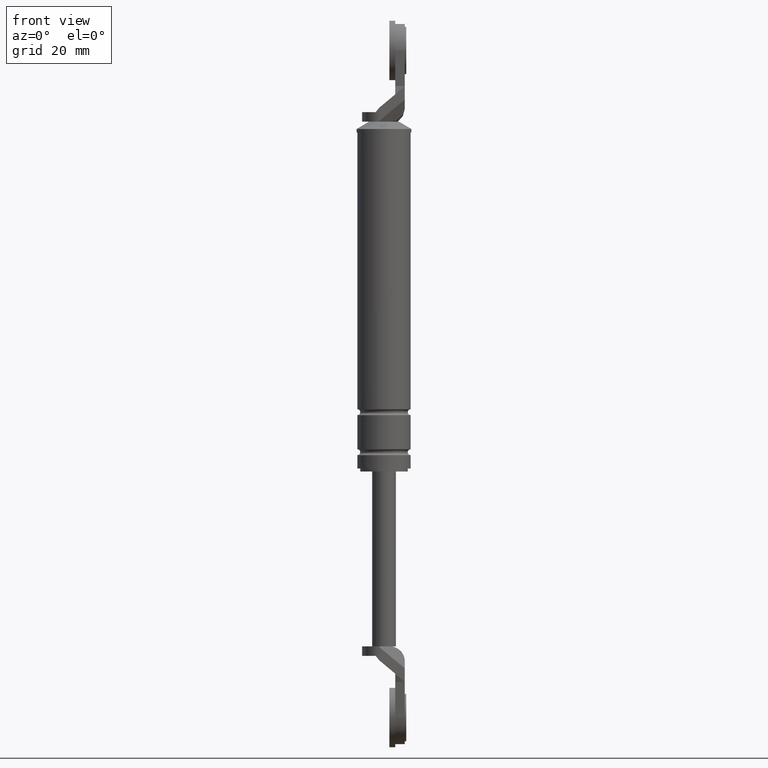
[diagram: clean part render]
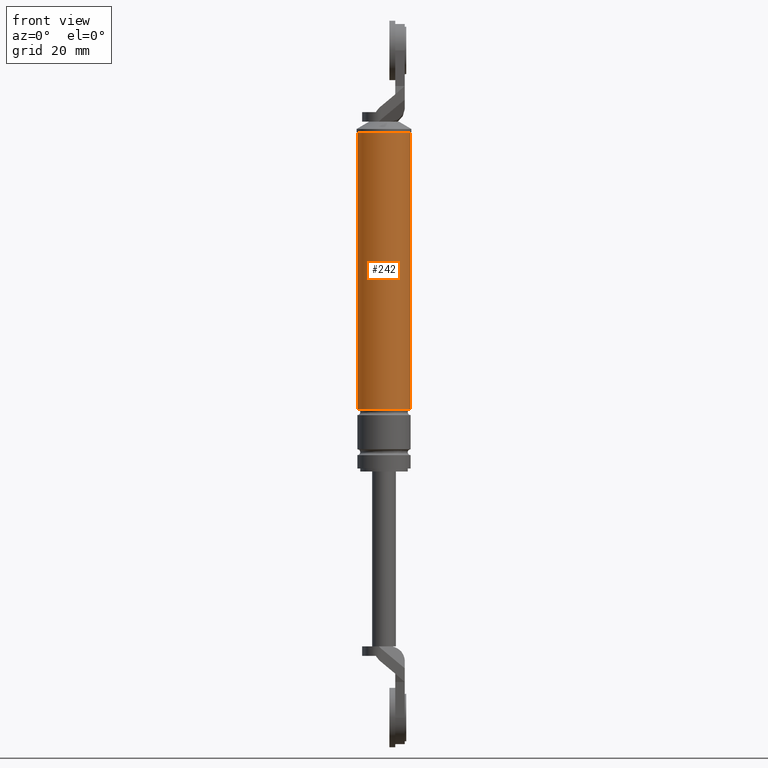
[diagram: same view with one face highlighted and labeled with its STEP entity id]
A machine part, front view. The second image highlights one B-rep face of the part: STEP entity #242.
In plain terms, the highlighted cylindrical surface (edge-blend (fillet) strip) has radius 9 mm, axis along (0, 0, 1).
Its self-contained STEP definition (entity closure, byte-faithful):
#242=ADVANCED_FACE('',(#675),#674,.T.);
#674=CYLINDRICAL_SURFACE('',#1397,9.00000000000E+000);
#675=FACE_OUTER_BOUND('',#1398,.T.);
#1394=CARTESIAN_POINT('',(0.00000000000E+000,3.58204186421E-014,0.00000000000E+000));
#1395=DIRECTION('',(-0.00000000000E+000,-0.00000000000E+000,1.00000000000E+000));
#1396=DIRECTION('',(1.00000000000E+000,0.00000000000E+000,0.00000000000E+000));
#1397=AXIS2_PLACEMENT_3D('',#1394,#1395,#1396);
#1398=EDGE_LOOP('',(#1946,#1947,#1948,#1949));
#1946=ORIENTED_EDGE('',*,*,#2260,.F.);
#1947=ORIENTED_EDGE('',*,*,#2257,.T.);
#1948=ORIENTED_EDGE('',*,*,#2234,.T.);
#1949=ORIENTED_EDGE('',*,*,#2259,.F.);
#2234=EDGE_CURVE('',#2868,#2869,#2870,.T.);
#2257=EDGE_CURVE('',#3020,#2868,#3021,.T.);
#2259=EDGE_CURVE('',#3027,#2869,#3034,.T.);
#2260=EDGE_CURVE('',#3020,#3027,#3040,.T.);
#2868=VERTEX_POINT('',#3993);
#2869=VERTEX_POINT('',#3994);
#2870=CIRCLE('',#3998,9.00000000000E+000);
#3020=VERTEX_POINT('',#4089);
#3021=(BOUNDED_CURVE() B_SPLINE_CURVE(1,(#4090,#4091),.UNSPECIFIED.,.F.,.F.) B_SPLINE_CURVE_WITH_KNOTS((2,2),(8.33333332085E-002,9.16666666563E-001),.UNSPECIFIED.) CURVE() GEOMETRIC_REPRESENTATION_ITEM() RATIONAL_B_SPLINE_CURVE((1.00000000000E+000,1.00000000000E+000)) REPRESENTATION_ITEM('') );
#3027=VERTEX_POINT('',#4092);
#3034=(BOUNDED_CURVE() B_SPLINE_CURVE(1,(#4097,#4098),.UNSPECIFIED.,.F.,.F.) B_SPLINE_CURVE_WITH_KNOTS((2,2),(8.33333333333E-002,9.16666666667E-001),.UNSPECIFIED.) CURVE() GEOMETRIC_REPRESENTATION_ITEM() RATIONAL_B_SPLINE_CURVE((7.50000000000E-001,7.50000000000E-001)) REPRESENTATION_ITEM('') );
#3040=CIRCLE('',#4102,9.00000000000E+000);
#3993=CARTESIAN_POINT('',(9.00000000000E+000,3.61192557345E-014,8.52999850000E+001));
#3994=CARTESIAN_POINT('',(-9.00000000000E+000,3.58204186421E-014,8.52999850000E+001));
#3995=CARTESIAN_POINT('',(0.00000000000E+000,3.58204186421E-014,8.52999850000E+001));
#3996=DIRECTION('',(-0.00000000000E+000,0.00000000000E+000,-1.00000000000E+000));
#3997=DIRECTION('',(-1.00000000000E+000,-1.22460635382E-016,0.00000000000E+000));
#3998=AXIS2_PLACEMENT_3D('',#3995,#3996,#3997);
#4089=CARTESIAN_POINT('',(9.00000000000E+000,3.61192557345E-014,-8.00001500000E+000));
#4090=CARTESIAN_POINT('',(9.00000000000E+000,3.58204186421E-014,-8.00001501398E+000));
#4091=CARTESIAN_POINT('',(9.00000000000E+000,3.58204186421E-014,8.52999849884E+001));
#4092=CARTESIAN_POINT('',(-9.00000000000E+000,3.58204186421E-014,-8.00001500000E+000));
#4097=CARTESIAN_POINT('',(-9.00000000000E+000,3.52310773148E-014,-8.00001500000E+000));
#4098=CARTESIAN_POINT('',(-9.00000000000E+000,3.52310773148E-014,8.52999850000E+001));
#4099=CARTESIAN_POINT('',(0.00000000000E+000,3.58204186421E-014,-8.00001500000E+000));
#4100=DIRECTION('',(-0.00000000000E+000,0.00000000000E+000,-1.00000000000E+000));
#4101=DIRECTION('',(-1.00000000000E+000,-1.22460635382E-016,0.00000000000E+000));
#4102=AXIS2_PLACEMENT_3D('',#4099,#4100,#4101);